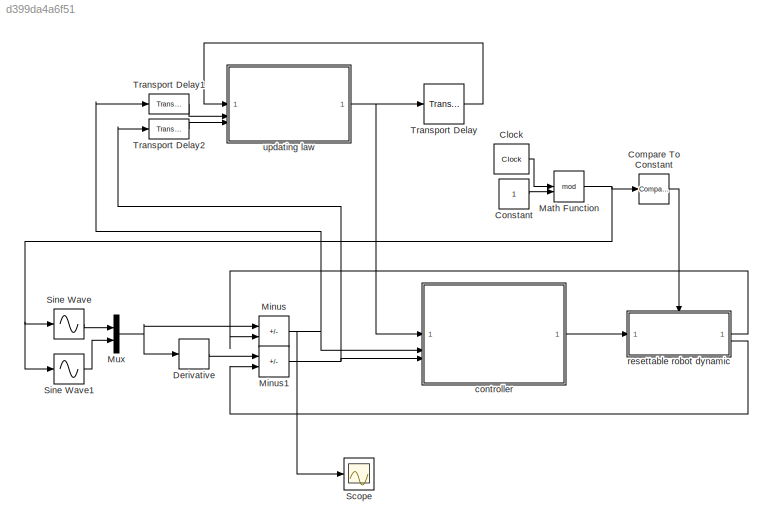
MODEL slx_d399da4a6f51
KIND model
CONFIG AbsTol = auto
CONFIG EnableMultiTasking = off
CONFIG FixedStep = auto
CONFIG MaxStep = auto
CONFIG MinStep = auto
CONFIG RelTol = 1e-3
CONFIG SampleTimeConstraint = Unconstrained
CONFIG SolverName = VariableStepAuto
CONFIG StartTime = 0.0
CONFIG StopTime = 10
BLOCK [Clock] Clock
BLOCK [Reference] Compare To Constant  REF=simulink/Logic and Bit
Operations/Compare
To Constant
  SourceBlock = simulink/Logic and Bit\nOperations/Compare\nTo Constant
  SourceType = Compare To Constant
BLOCK [Constant] Constant
  SampleTime = -1
BLOCK [Derivative] Derivative
BLOCK [Math] Math Function
  Operator = mod
BLOCK [Sum] Minus
  IconShape = rectangular
  Inputs = +-
BLOCK [Sum] Minus1
  IconShape = rectangular
  Inputs = +-
BLOCK [Mux] Mux
  DisplayOption = bar
  Inputs = 2
BLOCK [Scope] Scope
  Floating = off
  NumInputPorts = 1
  ScopeSpecificationString = Simulink.scopes.TimeScopeBlockCfg('CurrentConfiguration', extmgr.ConfigurationSet(extmgr.Configuration('Core','General UI',true),extmgr.Configuration('Core','Source UI',true),extmgr.Configuration('Sources','WiredSimulink',true),extmgr.Configuration('Visuals','Time Domain',true,'SerializedDisplays',{struct('MinYLimReal','-0.14468','MaxYLimReal','0.19248','YLabelReal','','MinYLimMag','0.00000','MaxY...<+1455ch>
BLOCK [Sin] Sine Wave
  Frequency = 2*pi
  SampleTime = 0
  TimeSource = Use external signal
BLOCK [Sin] Sine Wave1
  Frequency = 2*pi
  SampleTime = 0
  TimeSource = Use external signal
BLOCK [TransportDelay] Transport Delay
BLOCK [TransportDelay] Transport Delay1
BLOCK [TransportDelay] Transport Delay2
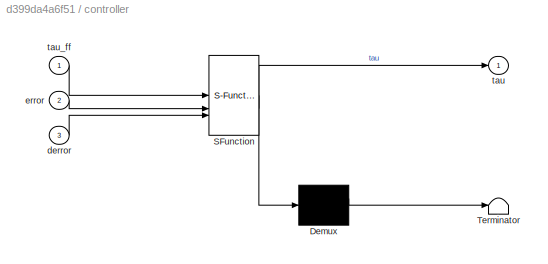
BLOCK [SubSystem] controller
  ErrorFcn = Stateflow.Translate.translate
  PermitHierarchicalResolution = ExplicitOnly
  SFBlockType = MATLAB Function
  TreatAsAtomicUnit = on
BLOCK [Demux] controller/ Demux 
  Outputs = 1
BLOCK [S-Function] controller/ SFunction 
  EnableBusSupport = on
  FunctionName = sf_sfun
  PortCounts = [3 2]
  SFcnIsStateOwnerBlock = off
  SFunctionDeploymentMode = off
  Tag = Stateflow S-Function 2
BLOCK [Terminator] controller/ Terminator 
BLOCK [Inport] controller/derror
  Port = 3
BLOCK [Inport] controller/error
  Port = 2
BLOCK [Outport] controller/tau
BLOCK [Inport] controller/tau_ff
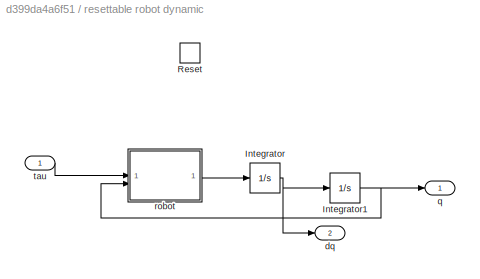
BLOCK [SubSystem] resettable robot dynamic
  TreatAsAtomicUnit = on
BLOCK [Integrator] resettable robot dynamic/Integrator
BLOCK [Integrator] resettable robot dynamic/Integrator1
BLOCK [ResetPort] resettable robot dynamic/Reset
  DisableCoverage = on
BLOCK [Outport] resettable robot dynamic/dq
  Port = 2
BLOCK [Outport] resettable robot dynamic/q
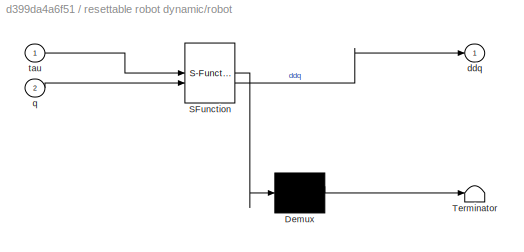
BLOCK [SubSystem] resettable robot dynamic/robot
  ErrorFcn = Stateflow.Translate.translate
  PermitHierarchicalResolution = ExplicitOnly
  SFBlockType = MATLAB Function
  TreatAsAtomicUnit = on
BLOCK [Demux] resettable robot dynamic/robot/ Demux 
  Outputs = 1
BLOCK [S-Function] resettable robot dynamic/robot/ SFunction 
  EnableBusSupport = on
  FunctionName = sf_sfun
  PortCounts = [2 2]
  SFcnIsStateOwnerBlock = off
  SFunctionDeploymentMode = off
  Tag = Stateflow S-Function 4
BLOCK [Terminator] resettable robot dynamic/robot/ Terminator 
BLOCK [Outport] resettable robot dynamic/robot/ddq
BLOCK [Inport] resettable robot dynamic/robot/q
  Port = 2
BLOCK [Inport] resettable robot dynamic/robot/tau
BLOCK [Inport] resettable robot dynamic/tau
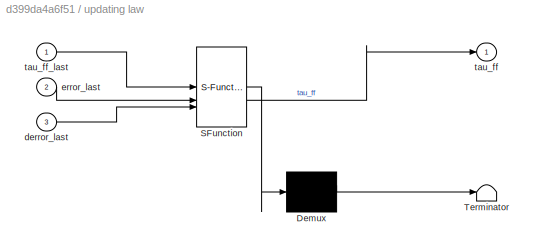
BLOCK [SubSystem] updating law
  ErrorFcn = Stateflow.Translate.translate
  PermitHierarchicalResolution = ExplicitOnly
  SFBlockType = MATLAB Function
  TreatAsAtomicUnit = on
BLOCK [Demux] updating law/ Demux 
  Outputs = 1
BLOCK [S-Function] updating law/ SFunction 
  EnableBusSupport = on
  FunctionName = sf_sfun
  PortCounts = [3 2]
  SFcnIsStateOwnerBlock = off
  SFunctionDeploymentMode = off
  Tag = Stateflow S-Function 3
BLOCK [Terminator] updating law/ Terminator 
BLOCK [Inport] updating law/derror_last
  Port = 3
BLOCK [Inport] updating law/error_last
  Port = 2
BLOCK [Outport] updating law/tau_ff
BLOCK [Inport] updating law/tau_ff_last
LINE Clock:1 -> Math Function:1
LINE Compare To Constant:1 -> resettable robot dynamic:Reset
LINE Constant:1 -> Math Function:2
LINE Derivative:1 -> Minus1:1
NET Math Function:1 -> Compare To Constant:1, Sine Wave1:1, Sine Wave:1
NET Minus1:1 -> Transport Delay2:1, controller:3
NET Minus:1 -> Scope:1, Transport Delay1:1, controller:2
NET Mux:1 -> Derivative:1, Minus:1
LINE Sine Wave1:1 -> Mux:2
LINE Sine Wave:1 -> Mux:1
LINE Transport Delay1:1 -> updating law:2
LINE Transport Delay2:1 -> updating law:3
LINE Transport Delay:1 -> updating law:1
LINE controller:1 -> resettable robot dynamic:1
NET resettable robot dynamic/Integrator1:1 -> resettable robot dynamic/q:1, resettable robot dynamic/robot:2
NET resettable robot dynamic/Integrator:1 -> resettable robot dynamic/Integrator1:1, resettable robot dynamic/dq:1
LINE resettable robot dynamic/robot:1 -> resettable robot dynamic/Integrator:1
LINE resettable robot dynamic/tau:1 -> resettable robot dynamic/robot:1
LINE resettable robot dynamic:1 -> Minus:2
LINE resettable robot dynamic:2 -> Minus1:2
NET updating law:1 -> Transport Delay:1, controller:1
note: NET lines group one-source signal fan-out (src -> all destinations, sorted); 1:1 wires keep LINE
CHART controller states=1 transitions=1
  STATE_LABEL 'eML_blk_kernel()'
  STATE_LABEL 'SCRIPT:\nfunction tau = controller(tau_ff, error, derror)\n\nkp = 40;\n\n\nkv = 0.3;\n\ntau = tau_ff + kp * error + kv * derror;'
CHART updating law states=1 transitions=1
  STATE_LABEL 'eML_blk_kernel()'
  STATE_LABEL 'SCRIPT:\nfunction tau_ff = updating_law(tau_ff_last, error_last, derror_last)\n\nalpha = 0.7;\n\nbeta = 3;\n\ntau_ff = tau_ff_last + alpha * (beta * error_last + derror_last);\n\nend'
CHART resettable robot dynamic/robot states=1 transitions=1
  STATE_LABEL 'eML_blk_kernel()'
  STATE_LABEL 'SCRIPT:\nfunction ddq = robot(tau, q)\n\nI = 0.01;\n\nm = 0.5;\n\nlg = 0.2;\n\ng = 9.8;\n\nIbar = I + m * lg * lg;\n\ntauBar = tau - m * g * lg * cos(q(1));\n\nddq = [0;0;];\nddq(1) = tauBar / Ibar;\n\nddq(2) = ddq(1) + 0.05;\n'
CHART  states=0 transitions=0
CHART  states=0 transitions=0
CHART  states=0 transitions=0
